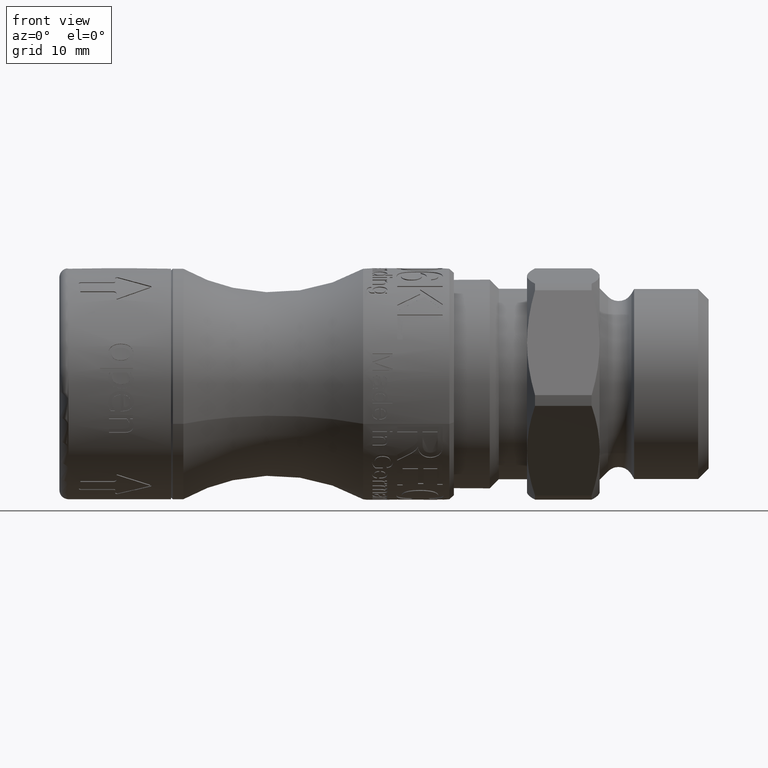
[diagram: clean part render]
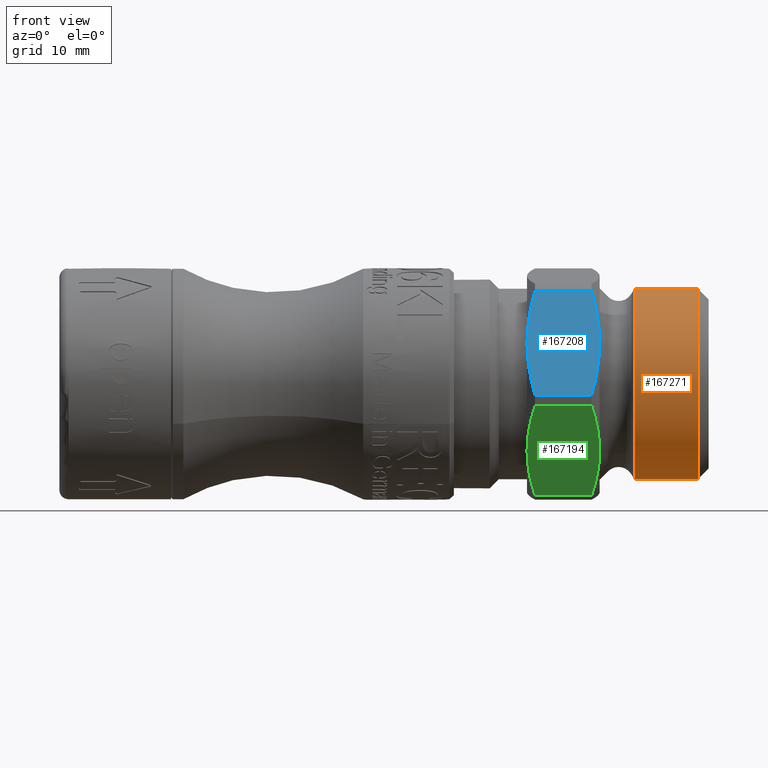
[diagram: same view with three faces highlighted in distinct colors, each labeled with its STEP entity id]
A machine part, front view with three faces highlighted in distinct colors.
Their STEP definitions:

[orange] entity #167271 — the highlighted cylindrical surface (bore or boss wall) has radius 10.4775 mm, axis along (-1, -0, -0).
#166521=CARTESIAN_POINT('',(61.000000000000007,8.284215463768485,6.414809459357239));
#166522=VERTEX_POINT('',#166521);
#166523=CARTESIAN_POINT('',(61.000000000000007,-2.348999E-016,1.084684E-031));
#166524=DIRECTION('',(-1.0,-1.790838E-017,-1.386720E-017));
#166525=DIRECTION('',(-2.264971E-017,0.790667188143019,0.61224619034667));
#166526=AXIS2_PLACEMENT_3D('',#166523,#166524,#166525);
#166527=CIRCLE('',#166526,10.477499999999999);
#166528=EDGE_CURVE('',#166522,#166522,#166527,.T.);
#167252=CARTESIAN_POINT('',(65.100000000000009,-1.174499E-016,9.170508E-031));
#167253=DIRECTION('',(-1.0,-2.864633E-017,-1.972152E-031));
#167254=DIRECTION('',(-2.264971E-017,0.790667188143019,0.61224619034667));
#167255=AXIS2_PLACEMENT_3D('',#167252,#167253,#167254);
#167256=CYLINDRICAL_SURFACE('',#167255,10.477499999999997);
#167257=ORIENTED_EDGE('',*,*,#166528,.F.);
#167258=EDGE_LOOP('',(#167257));
#167259=FACE_OUTER_BOUND('',#167258,.T.);
#167260=CARTESIAN_POINT('',(68.050000000000011,8.284215463768481,6.414809459357239));
#167261=VERTEX_POINT('',#167260);
#167262=CARTESIAN_POINT('',(68.050000000000011,-3.294327E-017,1.498836E-030));
#167263=DIRECTION('',(1.0,1.790838E-017,1.386720E-017));
#167264=DIRECTION('',(2.264971E-017,-0.790667188143019,-0.61224619034667));
#167265=AXIS2_PLACEMENT_3D('',#167262,#167263,#167264);
#167266=CIRCLE('',#167265,10.477499999999996);
#167267=EDGE_CURVE('',#167261,#167261,#167266,.T.);
#167268=ORIENTED_EDGE('',*,*,#167267,.F.);
#167269=EDGE_LOOP('',(#167268));
#167270=FACE_BOUND('',#167269,.T.);
#167271=ADVANCED_FACE('',(#167259,#167270),#167256,.T.);

[blue] entity #167208 — the highlighted planar face has unit normal (-0, 0.9256, -0.3786).
#166291=CARTESIAN_POINT('',(49.20000000000001,-11.106652179383634,4.543377308367953));
#166292=VERTEX_POINT('',#166291);
#166337=CARTESIAN_POINT('',(50.080459160514188,-8.744459301194654,10.317948271325573));
#166338=VERTEX_POINT('',#166337);
#166346=CARTESIAN_POINT('',(56.319540839485825,-8.744459301194658,10.317948271325568));
#166347=VERTEX_POINT('',#166346);
#166348=CARTESIAN_POINT('',(50.080459160514195,-8.744459301194658,10.317948271325568));
#166349=DIRECTION('',(1.0,0.0,0.0));
#166350=VECTOR('',#166349,6.23908167897163);
#166351=LINE('',#166348,#166350);
#166352=EDGE_CURVE('',#166338,#166347,#166351,.T.);
#166385=CARTESIAN_POINT('',(57.200000000000003,-11.106652179383634,4.543377308367953));
#166386=VERTEX_POINT('',#166385);
#166387=CARTESIAN_POINT('',(56.319540839485825,-8.744459301194658,10.317948271325566));
#166388=CARTESIAN_POINT('',(57.200000000000003,-9.996120757708116,7.258160914851447));
#166389=CARTESIAN_POINT('',(57.200000000000003,-11.106652179383635,4.543377308367952));
#166397=(BOUNDED_CURVE()B_SPLINE_CURVE(2,(#166387,#166388,#166389),.UNSPECIFIED.,.F.,.U.)B_SPLINE_CURVE_WITH_KNOTS((3,3),(0.0,0.631461080460213),.UNSPECIFIED.)CURVE()GEOMETRIC_REPRESENTATION_ITEM()RATIONAL_B_SPLINE_CURVE((1.0,1.031281565173473,1.0))REPRESENTATION_ITEM(''));
#166398=EDGE_CURVE('',#166347,#166386,#166397,.T.);
#166618=CARTESIAN_POINT('',(56.319540839485825,-13.46884505757261,-1.231193654589661));
#166619=VERTEX_POINT('',#166618);
#166620=CARTESIAN_POINT('',(57.200000000000003,-11.106652179383635,4.543377308367952));
#166621=CARTESIAN_POINT('',(57.200000000000003,-12.217183601059155,1.828593701884458));
#166622=CARTESIAN_POINT('',(56.319540839485825,-13.468845057572612,-1.23119365458966));
#166630=(BOUNDED_CURVE()B_SPLINE_CURVE(2,(#166620,#166621,#166622),.UNSPECIFIED.,.F.,.U.)B_SPLINE_CURVE_WITH_KNOTS((3,3),(0.631461080460213,1.262922160920427),.UNSPECIFIED.)CURVE()GEOMETRIC_REPRESENTATION_ITEM()RATIONAL_B_SPLINE_CURVE((1.0,1.031281565173485,1.0))REPRESENTATION_ITEM(''));
#166631=EDGE_CURVE('',#166386,#166619,#166630,.T.);
#166820=CARTESIAN_POINT('',(50.080459160514188,-13.468845057572613,-1.231193654589667));
#166821=VERTEX_POINT('',#166820);
#166822=CARTESIAN_POINT('',(56.319540839485825,-13.46884505757261,-1.231193654589661));
#166823=DIRECTION('',(-1.0,0.0,0.0));
#166824=VECTOR('',#166823,6.23908167897163);
#166825=LINE('',#166822,#166824);
#166826=EDGE_CURVE('',#166619,#166821,#166825,.T.);
#166980=CARTESIAN_POINT('',(49.20000000000001,-11.106652179383634,4.543377308367953));
#166981=CARTESIAN_POINT('',(49.20000000000001,-9.996120757708109,7.258160914851458));
#166982=CARTESIAN_POINT('',(50.080459160514188,-8.744459301194654,10.317948271325577));
#166990=(BOUNDED_CURVE()B_SPLINE_CURVE(2,(#166980,#166981,#166982),.UNSPECIFIED.,.F.,.U.)B_SPLINE_CURVE_WITH_KNOTS((3,3),(0.631461080460215,1.262922160920429),.UNSPECIFIED.)CURVE()GEOMETRIC_REPRESENTATION_ITEM()RATIONAL_B_SPLINE_CURVE((1.0,1.031281565173466,1.0))REPRESENTATION_ITEM(''));
#166991=EDGE_CURVE('',#166292,#166338,#166990,.T.);
#167026=CARTESIAN_POINT('',(50.080459160514188,-13.468845057572619,-1.231193654589673));
#167027=CARTESIAN_POINT('',(49.20000000000001,-12.217183601059167,1.828593701884436));
#167028=CARTESIAN_POINT('',(49.20000000000001,-11.106652179383634,4.543377308367953));
#167036=(BOUNDED_CURVE()B_SPLINE_CURVE(2,(#167026,#167027,#167028),.UNSPECIFIED.,.F.,.U.)B_SPLINE_CURVE_WITH_KNOTS((3,3),(0.0,0.631461080460215),.UNSPECIFIED.)CURVE()GEOMETRIC_REPRESENTATION_ITEM()RATIONAL_B_SPLINE_CURVE((1.0,1.031281565173462,1.0))REPRESENTATION_ITEM(''));
#167037=EDGE_CURVE('',#166821,#166292,#167036,.T.);
#167195=CARTESIAN_POINT('',(57.989823502504699,-11.106652179383634,4.543377308367953));
#167196=DIRECTION('',(-2.651373E-017,0.925554348281969,-0.378614775697329));
#167197=DIRECTION('',(-1.0,0.0,0.0));
#167198=AXIS2_PLACEMENT_3D('',#167195,#167196,#167197);
#167199=PLANE('',#167198);
#167200=ORIENTED_EDGE('',*,*,#166398,.F.);
#167201=ORIENTED_EDGE('',*,*,#166352,.F.);
#167202=ORIENTED_EDGE('',*,*,#166991,.F.);
#167203=ORIENTED_EDGE('',*,*,#167037,.F.);
#167204=ORIENTED_EDGE('',*,*,#166826,.F.);
#167205=ORIENTED_EDGE('',*,*,#166631,.F.);
#167206=EDGE_LOOP('',(#167200,#167201,#167202,#167203,#167204,#167205));
#167207=FACE_OUTER_BOUND('',#167206,.T.);
#167208=ADVANCED_FACE('',(#167207),#167199,.F.);

[green] entity #167194 — the highlighted planar face has unit normal (-0, 0.7907, 0.6122).
#166282=CARTESIAN_POINT('',(49.20000000000001,-9.488006257716233,-7.346954284160047));
#166283=VERTEX_POINT('',#166282);
#166434=CARTESIAN_POINT('',(57.200000000000003,-9.488006257716231,-7.346954284160047));
#166435=VERTEX_POINT('',#166434);
#166633=CARTESIAN_POINT('',(56.319540839485825,-13.307834968499003,-2.413949761530904));
#166634=VERTEX_POINT('',#166633);
#166642=CARTESIAN_POINT('',(56.319540839485825,-13.307834968499002,-2.413949761530909));
#166643=CARTESIAN_POINT('',(57.200000000000003,-11.283812115870715,-5.027814058046448));
#166644=CARTESIAN_POINT('',(57.200000000000003,-9.488006257716231,-7.346954284160047));
#166652=(BOUNDED_CURVE()B_SPLINE_CURVE(2,(#166642,#166643,#166644),.UNSPECIFIED.,.F.,.U.)B_SPLINE_CURVE_WITH_KNOTS((3,3),(0.0,0.631461080460213),.UNSPECIFIED.)CURVE()GEOMETRIC_REPRESENTATION_ITEM()RATIONAL_B_SPLINE_CURVE((1.0,1.031281565173503,1.0))REPRESENTATION_ITEM(''));
#166653=EDGE_CURVE('',#166634,#166435,#166652,.T.);
#166664=CARTESIAN_POINT('',(56.319540839485825,-5.668177546933459,-12.279958806789191));
#166665=VERTEX_POINT('',#166664);
#166666=CARTESIAN_POINT('',(57.200000000000003,-9.488006257716231,-7.346954284160047));
#166667=CARTESIAN_POINT('',(57.200000000000003,-7.692200399561743,-9.666094510273652));
#166668=CARTESIAN_POINT('',(56.319540839485825,-5.668177546933464,-12.279958806789185));
#166676=(BOUNDED_CURVE()B_SPLINE_CURVE(2,(#166666,#166667,#166668),.UNSPECIFIED.,.F.,.U.)B_SPLINE_CURVE_WITH_KNOTS((3,3),(0.631461080460213,1.262922160920426),.UNSPECIFIED.)CURVE()GEOMETRIC_REPRESENTATION_ITEM()RATIONAL_B_SPLINE_CURVE((1.0,1.031281565173444,1.0))REPRESENTATION_ITEM(''));
#166677=EDGE_CURVE('',#166435,#166665,#166676,.T.);
#166828=CARTESIAN_POINT('',(50.080459160514188,-13.307834968499005,-2.413949761530899));
#166829=VERTEX_POINT('',#166828);
#166837=CARTESIAN_POINT('',(50.080459160514195,-13.307834968499003,-2.413949761530904));
#166838=DIRECTION('',(1.0,0.0,0.0));
#166839=VECTOR('',#166838,6.23908167897163);
#166840=LINE('',#166837,#166839);
#166841=EDGE_CURVE('',#166829,#166634,#166840,.T.);
#166852=CARTESIAN_POINT('',(50.080459160514188,-5.668177546933456,-12.279958806789196));
#166853=VERTEX_POINT('',#166852);
#166854=CARTESIAN_POINT('',(56.319540839485825,-5.668177546933459,-12.279958806789191));
#166855=DIRECTION('',(-1.0,0.0,0.0));
#166856=VECTOR('',#166855,6.23908167897163);
#166857=LINE('',#166854,#166856);
#166858=EDGE_CURVE('',#166665,#166853,#166857,.T.);
#167040=CARTESIAN_POINT('',(49.20000000000001,-9.488006257716233,-7.346954284160047));
#167041=CARTESIAN_POINT('',(49.200000000000017,-11.283812115870735,-5.027814058046424));
#167042=CARTESIAN_POINT('',(50.080459160514188,-13.30783496849901,-2.413949761530893));
#167050=(BOUNDED_CURVE()B_SPLINE_CURVE(2,(#167040,#167041,#167042),.UNSPECIFIED.,.F.,.U.)B_SPLINE_CURVE_WITH_KNOTS((3,3),(0.631461080460215,1.26292216092043),.UNSPECIFIED.)CURVE()GEOMETRIC_REPRESENTATION_ITEM()RATIONAL_B_SPLINE_CURVE((1.0,1.031281565173474,1.0))REPRESENTATION_ITEM(''));
#167051=EDGE_CURVE('',#166283,#166829,#167050,.T.);
#167062=CARTESIAN_POINT('',(50.080459160514188,-5.668177546933451,-12.279958806789201));
#167063=CARTESIAN_POINT('',(49.200000000000017,-7.692200399561731,-9.66609451027367));
#167064=CARTESIAN_POINT('',(49.20000000000001,-9.488006257716233,-7.346954284160047));
#167072=(BOUNDED_CURVE()B_SPLINE_CURVE(2,(#167062,#167063,#167064),.UNSPECIFIED.,.F.,.U.)B_SPLINE_CURVE_WITH_KNOTS((3,3),(0.0,0.631461080460215),.UNSPECIFIED.)CURVE()GEOMETRIC_REPRESENTATION_ITEM()RATIONAL_B_SPLINE_CURVE((1.0,1.031281565173472,1.0))REPRESENTATION_ITEM(''));
#167073=EDGE_CURVE('',#166853,#166283,#167072,.T.);
#167181=CARTESIAN_POINT('',(57.989823502504699,-9.488006257716231,-7.346954284160047));
#167182=DIRECTION('',(-2.264971E-017,0.790667188143019,0.61224619034667));
#167183=DIRECTION('',(-1.0,0.0,0.0));
#167184=AXIS2_PLACEMENT_3D('',#167181,#167182,#167183);
#167185=PLANE('',#167184);
#167186=ORIENTED_EDGE('',*,*,#166653,.F.);
#167187=ORIENTED_EDGE('',*,*,#166841,.F.);
#167188=ORIENTED_EDGE('',*,*,#167051,.F.);
#167189=ORIENTED_EDGE('',*,*,#167073,.F.);
#167190=ORIENTED_EDGE('',*,*,#166858,.F.);
#167191=ORIENTED_EDGE('',*,*,#166677,.F.);
#167192=EDGE_LOOP('',(#167186,#167187,#167188,#167189,#167190,#167191));
#167193=FACE_OUTER_BOUND('',#167192,.T.);
#167194=ADVANCED_FACE('',(#167193),#167185,.F.);